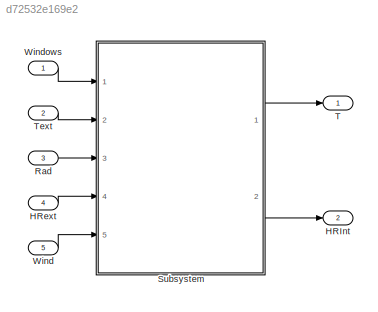
MODEL slx_d72532e169e2
KIND model
CONFIG AbsTol = auto
CONFIG EnableMultiTasking = off
CONFIG FixedStep = auto
CONFIG MaxStep = auto
CONFIG MinStep = auto
CONFIG RelTol = 1e-3
CONFIG SampleTimeConstraint = Unconstrained
CONFIG SolverName = VariableStepAuto
CONFIG StartTime = 0.0
CONFIG StopTime = 8
WORKSPACE source: mxarray member
WORKSPACE params: climate_p (value not decoded)
BLOCK [Outport] HRInt
  Port = 2
BLOCK [Inport] HRext
  Port = 4
BLOCK [Inport] Rad
  Port = 3
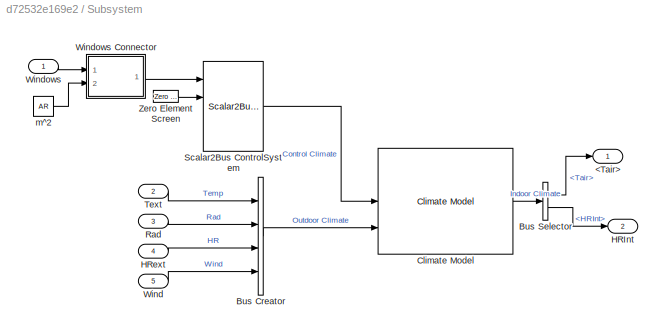
BLOCK [SubSystem] Subsystem
  Ports = [5, 2]
  RequestExecContextInheritance = off
BLOCK [Outport] Subsystem/<Tair>
BLOCK [BusCreator] Subsystem/Bus Creator
  DisplayOption = bar
  InheritFromInputs = on
  Inputs = 4
  Ports = [4, 1]
BLOCK [BusSelector] Subsystem/Bus Selector
  OutputSignals = Temp.Tair,Gas.HRInt
  Ports = [1, 2]
BLOCK [Reference] Subsystem/Climate Model  REF=HORTISIM/Climate/Models/Climate Model
  Ports = [3, 1]
  SourceBlock = HORTISIM/Climate/Models/Climate Model
  SourceProductName = Horti Simulator
BLOCK [Outport] Subsystem/HRInt
  Port = 2
BLOCK [Inport] Subsystem/HRext
  Port = 4
BLOCK [Inport] Subsystem/Rad
  Port = 3
BLOCK [Reference] Subsystem/Scalar2Bus ControlSystem  REF=HORTISIM/Other 
Functions/Scalar2Bus 
Control Climate
  Ports = [4, 1]
  SourceBlock = HORTISIM/Other \nFunctions/Scalar2Bus \nControl Climate
  SourceProductName = Horti Simulator
  SourceType = SubSystem
BLOCK [Inport] Subsystem/Text
  Port = 2
BLOCK [Inport] Subsystem/Wind
  Port = 5
BLOCK [Inport] Subsystem/Windows
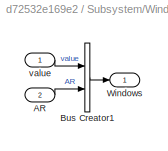
BLOCK [SubSystem] Subsystem/Windows Connector
  Ports = [2, 1]
  RequestExecContextInheritance = off
BLOCK [Inport] Subsystem/Windows Connector/AR
  Port = 2
BLOCK [BusCreator] Subsystem/Windows Connector/Bus Creator1
  DisplayOption = bar
  InheritFromInputs = on
  Inputs = 2
  Ports = [2, 1]
BLOCK [Outport] Subsystem/Windows Connector/Windows
BLOCK [Inport] Subsystem/Windows Connector/value
BLOCK [Reference] Subsystem/Zero Element Screen  REF=HORTISIM/Other 
Functions/Zero Element
Screen
  Ports = [0, 1]
  SourceBlock = HORTISIM/Other \nFunctions/Zero Element\nScreen
  SourceProductName = Horti Simulator
  SourceType = SubSystem
BLOCK [Constant] Subsystem/m^2
  Value = AR
BLOCK [Outport] T
BLOCK [Inport] Text
  Port = 2
BLOCK [Inport] Wind
  Port = 5
BLOCK [Inport] Windows
LINE HRext:1 -> Subsystem:4
LINE Rad:1 -> Subsystem:3
LINE Subsystem/Bus Creator:1 -> Subsystem/Climate Model:3
LINE Subsystem/Bus Selector:1 -> Subsystem/<Tair>:1
LINE Subsystem/Bus Selector:2 -> Subsystem/HRInt:1
LINE Subsystem/Climate Model:1 -> Subsystem/Bus Selector:1
LINE Subsystem/HRext:1 -> Subsystem/Bus Creator:3
LINE Subsystem/Rad:1 -> Subsystem/Bus Creator:2
LINE Subsystem/Scalar2Bus ControlSystem:1 -> Subsystem/Climate Model:2
LINE Subsystem/Text:1 -> Subsystem/Bus Creator:1
LINE Subsystem/Wind:1 -> Subsystem/Bus Creator:4
LINE Subsystem/Windows Connector/AR:1 -> Subsystem/Windows Connector/Bus Creator1:2
LINE Subsystem/Windows Connector/Bus Creator1:1 -> Subsystem/Windows Connector/Windows:1
LINE Subsystem/Windows Connector/value:1 -> Subsystem/Windows Connector/Bus Creator1:1
LINE Subsystem/Windows Connector:1 -> Subsystem/Scalar2Bus ControlSystem:1
LINE Subsystem/Windows:1 -> Subsystem/Windows Connector:1
LINE Subsystem/Zero Element Screen:1 -> Subsystem/Scalar2Bus ControlSystem:2
LINE Subsystem/m^2:1 -> Subsystem/Windows Connector:2
LINE Subsystem:1 -> T:1
LINE Subsystem:2 -> HRInt:1
LINE Text:1 -> Subsystem:2
LINE Wind:1 -> Subsystem:5
LINE Windows:1 -> Subsystem:1
